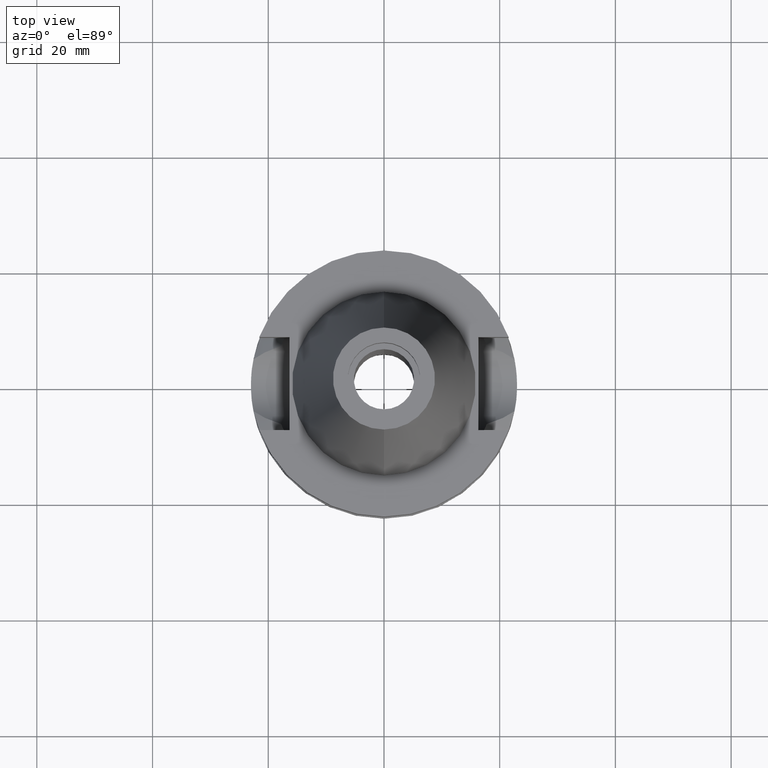
[diagram: clean part render]
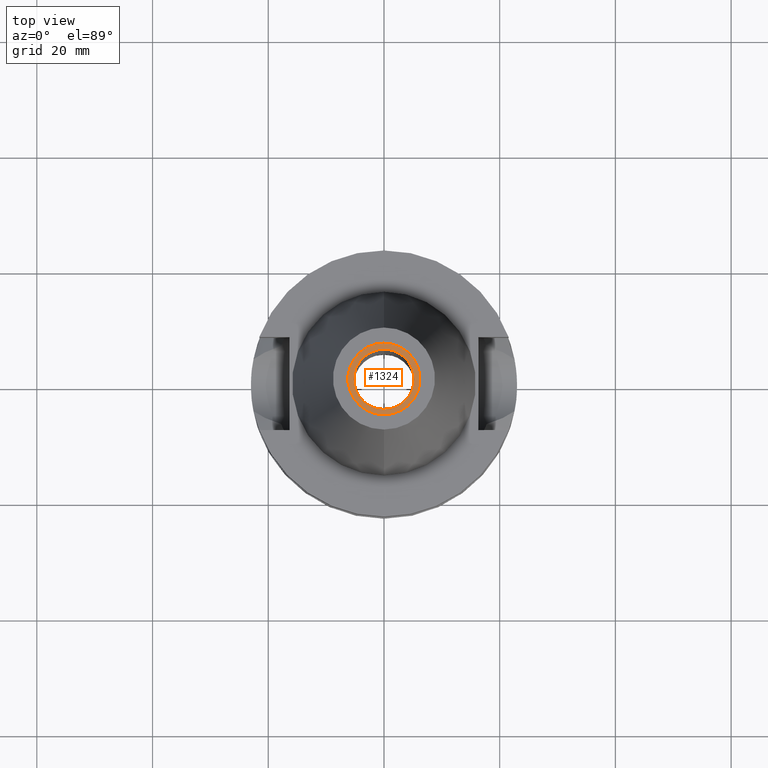
[diagram: same view with one face highlighted and labeled with its STEP entity id]
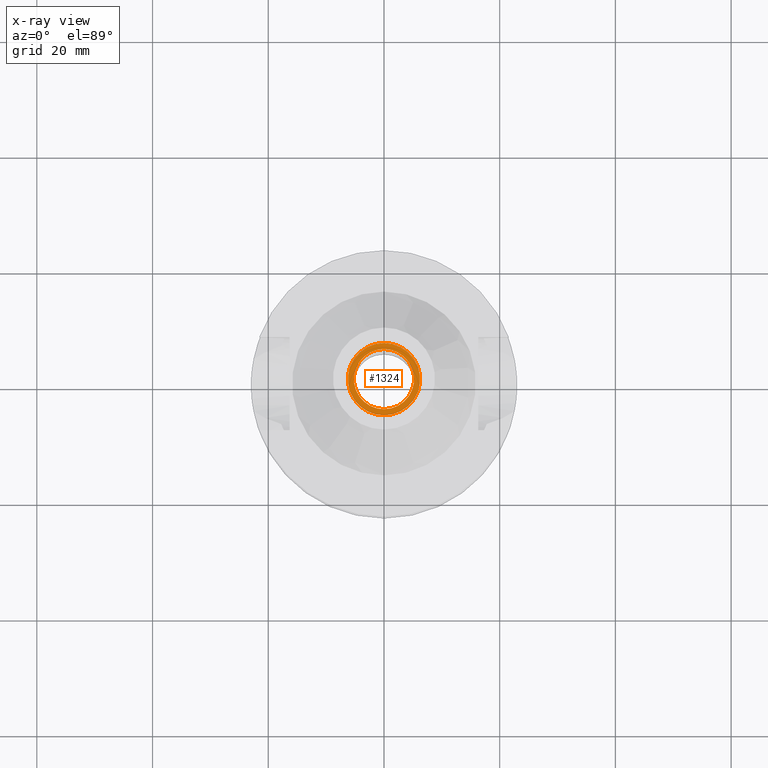
[diagram: x-ray of the same camera — body ghosted, the highlighted face saturated]
A machine part, top view. The second image highlights one B-rep face of the part: STEP entity #1324.
The next image is the same camera in x-ray: the body ghosted, the highlighted face saturated — about 0% of this face is hidden behind the body in this view.
In plain terms, the highlighted planar face has unit normal (0, 0, -1).
Its self-contained STEP definition (entity closure, byte-faithful):
#94=CARTESIAN_POINT('',(0.E0,1.883751706448E-14,4.14E1));
#95=DIRECTION('',(0.E0,0.E0,-1.E0));
#96=DIRECTION('',(0.E0,-1.E0,0.E0));
#97=AXIS2_PLACEMENT_3D('',#94,#95,#96);
#102=CARTESIAN_POINT('',(0.E0,1.883751706448E-14,4.14E1));
#103=DIRECTION('',(0.E0,0.E0,-1.E0));
#104=DIRECTION('',(0.E0,1.E0,0.E0));
#105=AXIS2_PLACEMENT_3D('',#102,#103,#104);
#110=CARTESIAN_POINT('',(0.E0,1.883751706448E-14,4.14E1));
#111=DIRECTION('',(0.E0,0.E0,1.E0));
#112=DIRECTION('',(0.E0,-1.E0,0.E0));
#113=AXIS2_PLACEMENT_3D('',#110,#111,#112);
#118=CARTESIAN_POINT('',(0.E0,1.883751706448E-14,4.14E1));
#119=DIRECTION('',(0.E0,0.E0,1.E0));
#120=DIRECTION('',(0.E0,1.E0,0.E0));
#121=AXIS2_PLACEMENT_3D('',#118,#119,#120);
#1091=CARTESIAN_POINT('',(0.E0,6.25E0,4.14E1));
#1092=VERTEX_POINT('',#1091);
#1093=CARTESIAN_POINT('',(0.E0,-6.25E0,4.14E1));
#1094=VERTEX_POINT('',#1093);
#1095=CARTESIAN_POINT('',(0.E0,-5.2E0,4.14E1));
#1096=CARTESIAN_POINT('',(0.E0,5.2E0,4.14E1));
#1097=VERTEX_POINT('',#1095);
#1098=VERTEX_POINT('',#1096);
#1309=CARTESIAN_POINT('',(0.E0,1.731650573994E-14,4.14E1));
#1310=DIRECTION('',(0.E0,0.E0,-1.E0));
#1311=DIRECTION('',(0.E0,-1.E0,0.E0));
#1312=AXIS2_PLACEMENT_3D('',#1309,#1310,#1311);
#1313=PLANE('',#1312);
#1314=ORIENTED_EDGE('',*,*,#1302,.T.);
#1315=ORIENTED_EDGE('',*,*,#1291,.T.);
#1316=EDGE_LOOP('',(#1314,#1315));
#1317=FACE_OUTER_BOUND('',#1316,.F.);
#1319=ORIENTED_EDGE('',*,*,#1318,.T.);
#1321=ORIENTED_EDGE('',*,*,#1320,.T.);
#1322=EDGE_LOOP('',(#1319,#1321));
#1323=FACE_BOUND('',#1322,.F.);
#98=CIRCLE('',#97,6.25E0);
#106=CIRCLE('',#105,6.25E0);
#114=CIRCLE('',#113,5.2E0);
#122=CIRCLE('',#121,5.2E0);
#1291=EDGE_CURVE('',#1092,#1094,#106,.T.);
#1302=EDGE_CURVE('',#1094,#1092,#98,.T.);
#1318=EDGE_CURVE('',#1097,#1098,#114,.T.);
#1320=EDGE_CURVE('',#1098,#1097,#122,.T.);
#1324=ADVANCED_FACE('',(#1317,#1323),#1313,.F.);